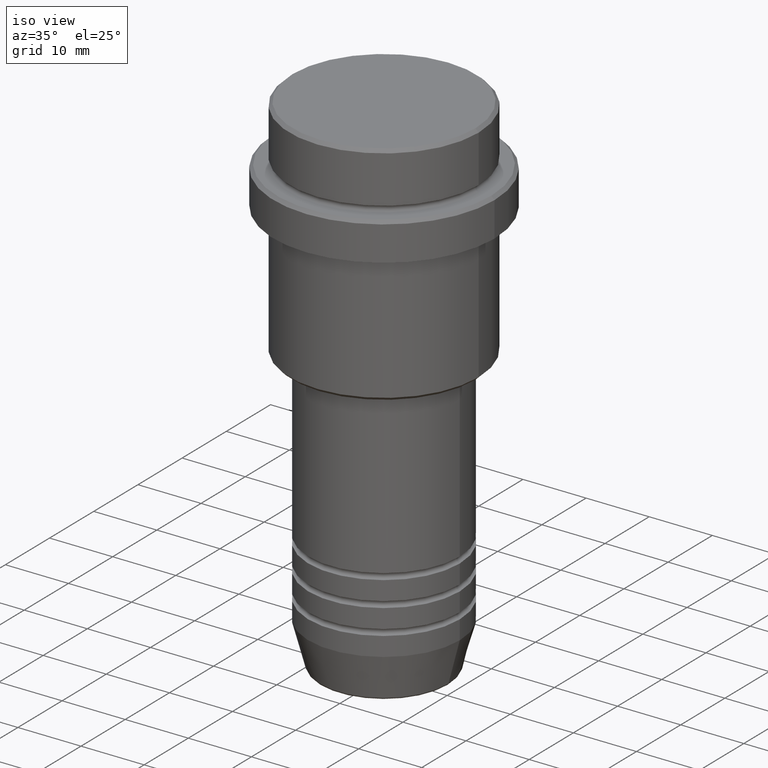
[diagram: clean part render]
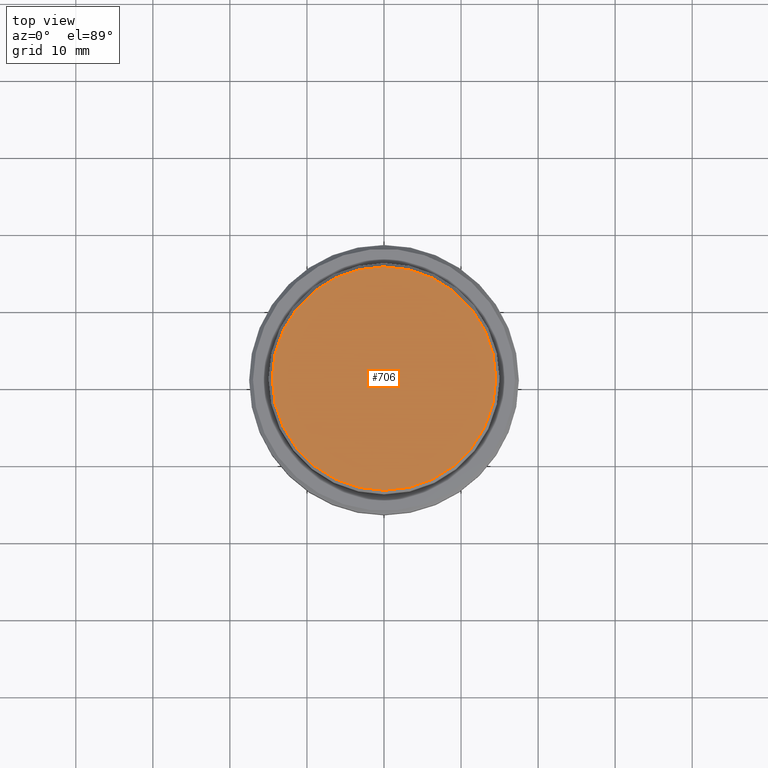
[diagram: tour spotlight — one face highlighted and labeled with its STEP entity id]
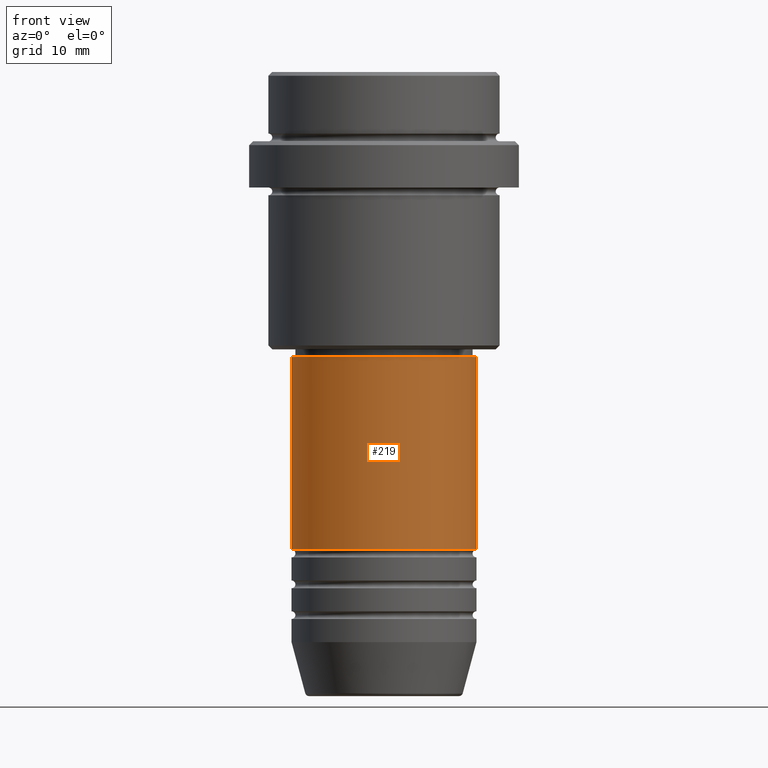
[diagram: tour spotlight — one face highlighted and labeled with its STEP entity id]
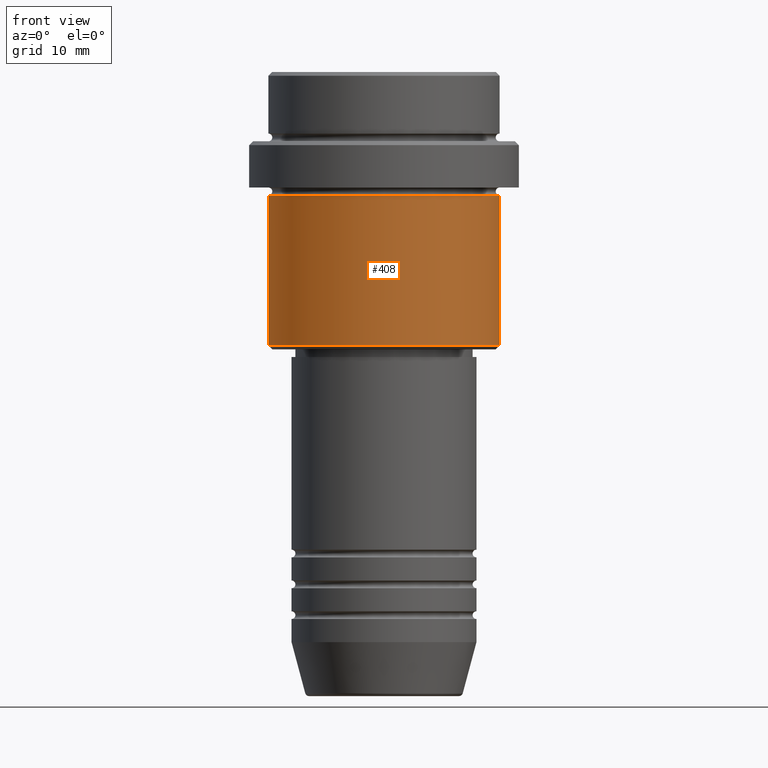
[diagram: tour spotlight — one face highlighted and labeled with its STEP entity id]
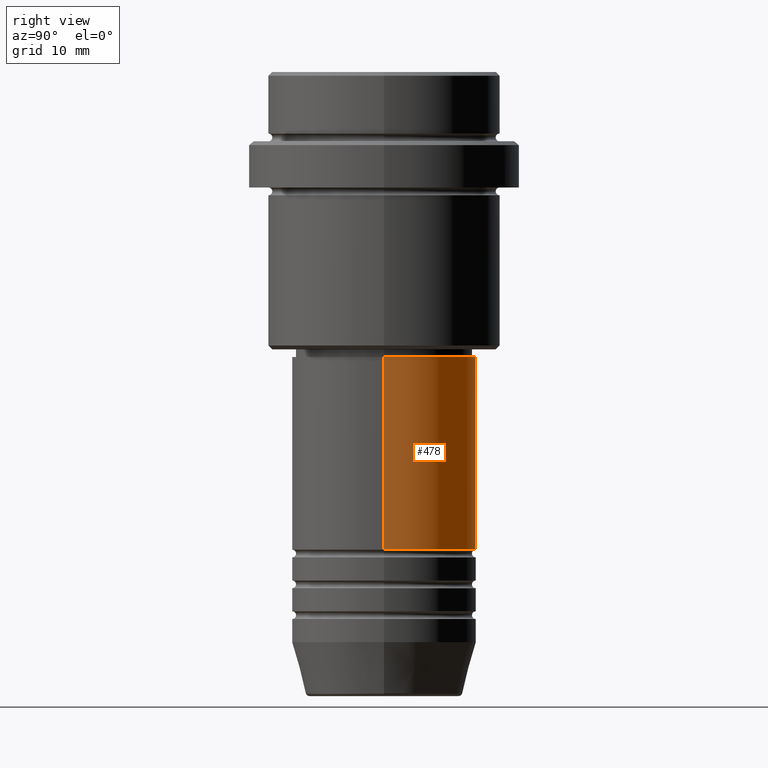
[diagram: tour spotlight — one face highlighted and labeled with its STEP entity id]
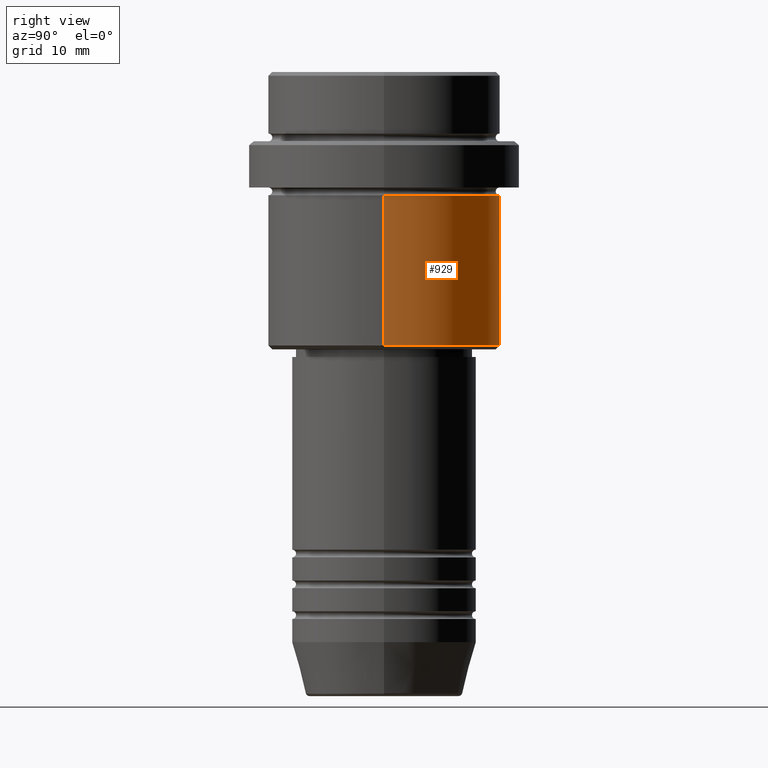
[diagram: tour spotlight — one face highlighted and labeled with its STEP entity id]
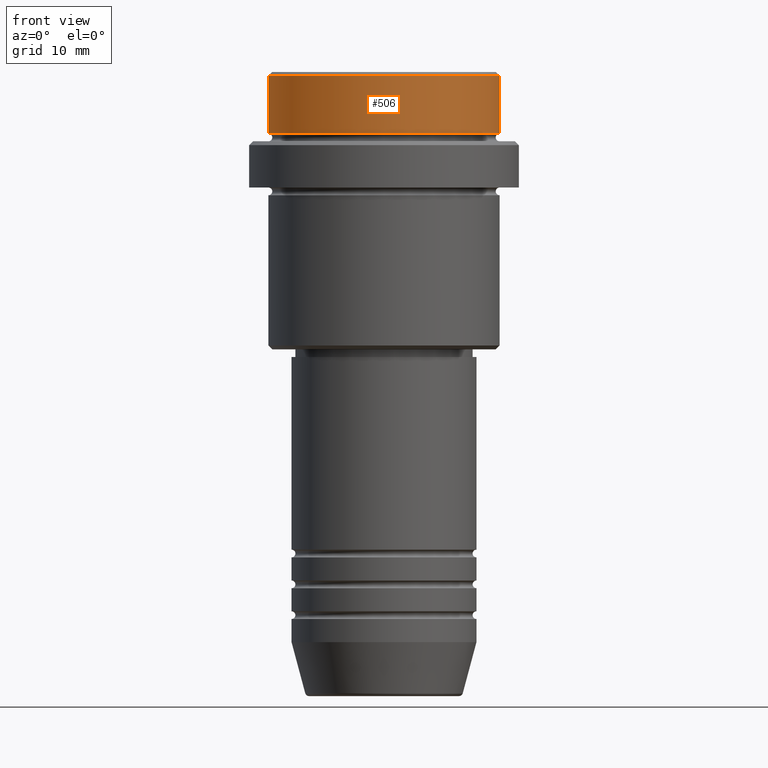
[diagram: tour spotlight — one face highlighted and labeled with its STEP entity id]
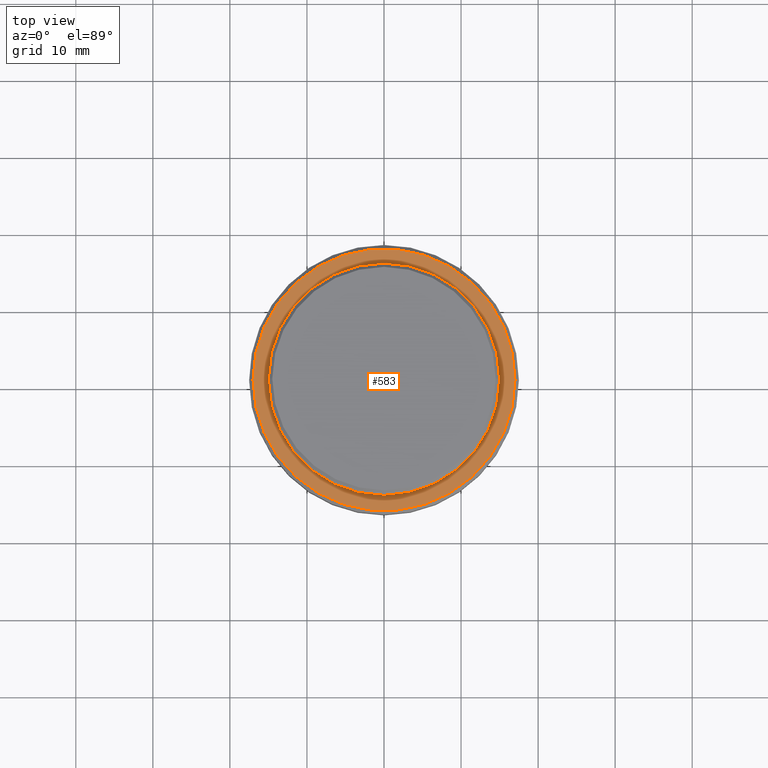
[diagram: tour spotlight — one face highlighted and labeled with its STEP entity id]
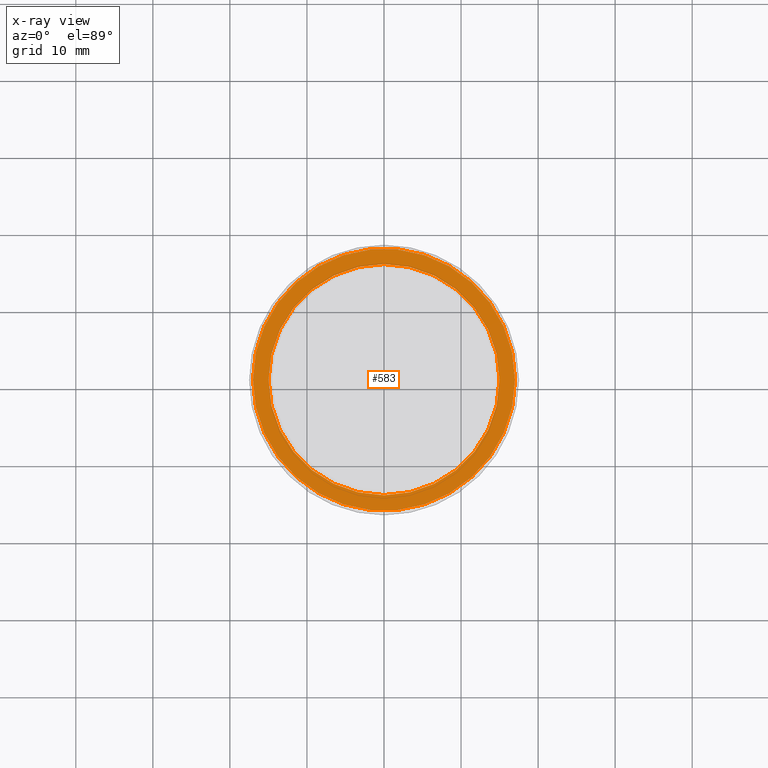
[diagram: x-ray of the same camera — body ghosted, this tour face saturated]
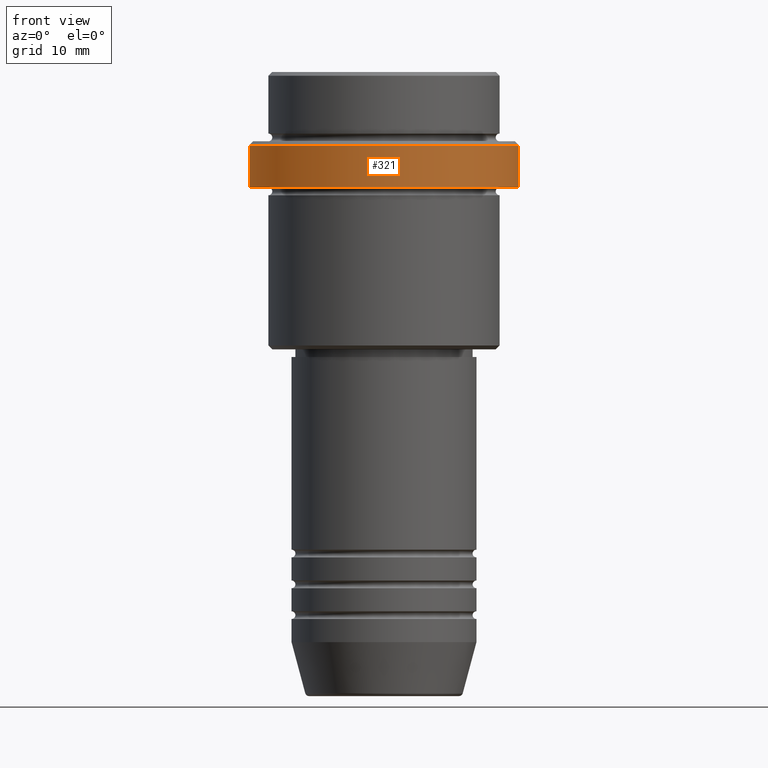
[diagram: tour spotlight — one face highlighted and labeled with its STEP entity id]
A machine part: a face-by-face anatomy tour. The part has 52 B-rep faces; the first image is the clean iso view, then the 8 largest visible faces are spotlighted one at a time (largest first), each with its STEP entity span.

Face 1 — top view, entity #706. In plain terms, the highlighted planar face has unit normal (0, -0, 1).
Definition (entity closure, byte-faithful):
#66 = CIRCLE ( 'NONE', #530, 14.50000000000001066 ) ;
#134 = DIRECTION ( 'NONE',  ( 1.000000000000000000, 0.000000000000000000, 0.000000000000000000 ) ) ;
#150 = ORIENTED_EDGE ( 'NONE', *, *, #499, .T. ) ;
#260 = DIRECTION ( 'NONE',  ( -0.000000000000000000, -0.000000000000000000, 1.000000000000000000 ) ) ;
#276 = AXIS2_PLACEMENT_3D ( 'NONE', #1019, #260, #134 ) ;
#480 = AXIS2_PLACEMENT_3D ( 'NONE', #1366, #708, #1221 ) ;
#487 = ORIENTED_EDGE ( 'NONE', *, *, #755, .T. ) ;
#499 = EDGE_CURVE ( 'NONE', #1029, #527, #66, .T. ) ;
#507 = CIRCLE ( 'NONE', #276, 14.50000000000001066 ) ;
#527 = VERTEX_POINT ( 'NONE', #956 ) ;
#530 = AXIS2_PLACEMENT_3D ( 'NONE', #1113, #710, #947 ) ;
#612 = CARTESIAN_POINT ( 'NONE',  ( -14.50000000000001066, 0.000000000000000000, 0.000000000000000000 ) ) ;
#706 = ADVANCED_FACE ( 'NONE', ( #726 ), #1371, .T. ) ;
#708 = DIRECTION ( 'NONE',  ( 0.000000000000000000, -0.000000000000000000, 1.000000000000000000 ) ) ;
#710 = DIRECTION ( 'NONE',  ( -0.000000000000000000, -0.000000000000000000, 1.000000000000000000 ) ) ;
#726 = FACE_OUTER_BOUND ( 'NONE', #1025, .T. ) ;
#755 = EDGE_CURVE ( 'NONE', #527, #1029, #507, .T. ) ;
#947 = DIRECTION ( 'NONE',  ( 1.000000000000000000, 0.000000000000000000, 0.000000000000000000 ) ) ;
#956 = CARTESIAN_POINT ( 'NONE',  ( 14.50000000000001066, 1.806354028742346591E-15, 0.000000000000000000 ) ) ;
#1019 = CARTESIAN_POINT ( 'NONE',  ( 0.000000000000000000, 0.000000000000000000, 0.000000000000000000 ) ) ;
#1025 = EDGE_LOOP ( 'NONE', ( #150, #487 ) ) ;
#1029 = VERTEX_POINT ( 'NONE', #612 ) ;
#1113 = CARTESIAN_POINT ( 'NONE',  ( 0.000000000000000000, 0.000000000000000000, 0.000000000000000000 ) ) ;
#1221 = DIRECTION ( 'NONE',  ( 1.000000000000000000, 0.000000000000000000, 0.000000000000000000 ) ) ;
#1366 = CARTESIAN_POINT ( 'NONE',  ( 0.000000000000000000, 0.000000000000000000, 0.000000000000000000 ) ) ;
#1371 = PLANE ( 'NONE',  #480 ) ;

Face 2 — front view, entity #219. In plain terms, the highlighted cylindrical surface (partial cylindrical patch) has radius 12 mm, axis along (-0, -0, 1).
Definition (entity closure, byte-faithful):
#17 = CARTESIAN_POINT ( 'NONE',  ( 11.99999999999999822, 0.000000000000000000, -37.00000000000000000 ) ) ;
#35 = EDGE_CURVE ( 'NONE', #791, #795, #1202, .T. ) ;
#46 = CARTESIAN_POINT ( 'NONE',  ( 0.000000000000000000, 0.000000000000000000, -61.99999999999987921 ) ) ;
#95 = EDGE_CURVE ( 'NONE', #1087, #97, #296, .T. ) ;
#97 = VERTEX_POINT ( 'NONE', #17 ) ;
#105 = AXIS2_PLACEMENT_3D ( 'NONE', #168, #751, #192 ) ;
#114 = LINE ( 'NONE', #1104, #179 ) ;
#168 = CARTESIAN_POINT ( 'NONE',  ( 0.000000000000000000, 0.000000000000000000, 0.000000000000000000 ) ) ;
#179 = VECTOR ( 'NONE', #683, 1000.000000000000000 ) ;
#192 = DIRECTION ( 'NONE',  ( 1.000000000000000000, 0.000000000000000000, 0.000000000000000000 ) ) ;
#197 = ORIENTED_EDGE ( 'NONE', *, *, #95, .F. ) ;
#211 = CARTESIAN_POINT ( 'NONE',  ( -11.99999999999999822, 1.469576158976823750E-15, -37.00000000000000000 ) ) ;
#213 = EDGE_LOOP ( 'NONE', ( #1311, #468, #327, #197 ) ) ;
#219 = ADVANCED_FACE ( 'NONE', ( #376 ), #495, .T. ) ;
#224 = CARTESIAN_POINT ( 'NONE',  ( 0.000000000000000000, 0.000000000000000000, -37.00000000000000000 ) ) ;
#237 = LINE ( 'NONE', #481, #651 ) ;
#296 = CIRCLE ( 'NONE', #692, 11.99999999999999822 ) ;
#308 = EDGE_CURVE ( 'NONE', #791, #1087, #114, .T. ) ;
#327 = ORIENTED_EDGE ( 'NONE', *, *, #1257, .T. ) ;
#376 = FACE_OUTER_BOUND ( 'NONE', #213, .T. ) ;
#380 = CARTESIAN_POINT ( 'NONE',  ( -12.00000000000000000, 1.469576158976823947E-15, -61.99999999999987921 ) ) ;
#468 = ORIENTED_EDGE ( 'NONE', *, *, #35, .T. ) ;
#481 = CARTESIAN_POINT ( 'NONE',  ( 12.00000000000000000, 0.000000000000000000, 0.000000000000000000 ) ) ;
#482 = DIRECTION ( 'NONE',  ( -0.000000000000000000, -0.000000000000000000, 1.000000000000000000 ) ) ;
#495 = CYLINDRICAL_SURFACE ( 'NONE', #105, 12.00000000000000000 ) ;
#542 = CARTESIAN_POINT ( 'NONE',  ( 12.00000000000000000, 0.000000000000000000, -61.99999999999987921 ) ) ;
#651 = VECTOR ( 'NONE', #679, 1000.000000000000000 ) ;
#679 = DIRECTION ( 'NONE',  ( -0.000000000000000000, -0.000000000000000000, 1.000000000000000000 ) ) ;
#683 = DIRECTION ( 'NONE',  ( -0.000000000000000000, -0.000000000000000000, 1.000000000000000000 ) ) ;
#692 = AXIS2_PLACEMENT_3D ( 'NONE', #224, #1112, #1234 ) ;
#715 = AXIS2_PLACEMENT_3D ( 'NONE', #46, #482, #754 ) ;
#751 = DIRECTION ( 'NONE',  ( -0.000000000000000000, -0.000000000000000000, 1.000000000000000000 ) ) ;
#754 = DIRECTION ( 'NONE',  ( 1.000000000000000000, 0.000000000000000000, 0.000000000000000000 ) ) ;
#791 = VERTEX_POINT ( 'NONE', #380 ) ;
#795 = VERTEX_POINT ( 'NONE', #542 ) ;
#1087 = VERTEX_POINT ( 'NONE', #211 ) ;
#1104 = CARTESIAN_POINT ( 'NONE',  ( -12.00000000000000000, 1.469576158976823947E-15, 0.000000000000000000 ) ) ;
#1112 = DIRECTION ( 'NONE',  ( -0.000000000000000000, -0.000000000000000000, 1.000000000000000000 ) ) ;
#1202 = CIRCLE ( 'NONE', #715, 12.00000000000000000 ) ;
#1234 = DIRECTION ( 'NONE',  ( 1.000000000000000000, 0.000000000000000000, 0.000000000000000000 ) ) ;
#1257 = EDGE_CURVE ( 'NONE', #795, #97, #237, .T. ) ;
#1311 = ORIENTED_EDGE ( 'NONE', *, *, #308, .F. ) ;

Face 3 — front view, entity #408. In plain terms, the highlighted cylindrical surface (partial cylindrical patch) has radius 15 mm, axis along (-0, -0, 1).
Definition (entity closure, byte-faithful):
#31 = CARTESIAN_POINT ( 'NONE',  ( 15.00000000000000178, 0.000000000000000000, -16.00000000000000000 ) ) ;
#43 = ORIENTED_EDGE ( 'NONE', *, *, #774, .F. ) ;
#56 = CARTESIAN_POINT ( 'NONE',  ( 0.000000000000000000, 0.000000000000000000, -16.00000000000000000 ) ) ;
#57 = DIRECTION ( 'NONE',  ( -0.000000000000000000, -0.000000000000000000, 1.000000000000000000 ) ) ;
#157 = CARTESIAN_POINT ( 'NONE',  ( -15.00000000000000000, 1.836970198721029589E-15, 0.000000000000000000 ) ) ;
#203 = VECTOR ( 'NONE', #636, 1000.000000000000000 ) ;
#217 = LINE ( 'NONE', #157, #203 ) ;
#289 = ORIENTED_EDGE ( 'NONE', *, *, #878, .T. ) ;
#291 = CARTESIAN_POINT ( 'NONE',  ( 15.00000000000000000, 0.000000000000000000, -35.49999999999998579 ) ) ;
#300 = CARTESIAN_POINT ( 'NONE',  ( 15.00000000000000000, 0.000000000000000000, 0.000000000000000000 ) ) ;
#363 = VECTOR ( 'NONE', #526, 1000.000000000000000 ) ;
#408 = ADVANCED_FACE ( 'NONE', ( #607 ), #596, .T. ) ;
#414 = EDGE_LOOP ( 'NONE', ( #43, #289, #925, #1248 ) ) ;
#464 = DIRECTION ( 'NONE',  ( -0.000000000000000000, -0.000000000000000000, 1.000000000000000000 ) ) ;
#467 = CARTESIAN_POINT ( 'NONE',  ( -15.00000000000000355, 1.836970198721029983E-15, -16.00000000000000000 ) ) ;
#491 = DIRECTION ( 'NONE',  ( -0.000000000000000000, -0.000000000000000000, 1.000000000000000000 ) ) ;
#526 = DIRECTION ( 'NONE',  ( -0.000000000000000000, -0.000000000000000000, 1.000000000000000000 ) ) ;
#548 = LINE ( 'NONE', #300, #363 ) ;
#565 = EDGE_CURVE ( 'NONE', #986, #913, #548, .T. ) ;
#596 = CYLINDRICAL_SURFACE ( 'NONE', #1090, 15.00000000000000000 ) ;
#607 = FACE_OUTER_BOUND ( 'NONE', #414, .T. ) ;
#629 = AXIS2_PLACEMENT_3D ( 'NONE', #56, #491, #923 ) ;
#636 = DIRECTION ( 'NONE',  ( -0.000000000000000000, -0.000000000000000000, 1.000000000000000000 ) ) ;
#649 = CIRCLE ( 'NONE', #629, 15.00000000000000178 ) ;
#691 = DIRECTION ( 'NONE',  ( -1.000000000000000000, 0.000000000000000000, 0.000000000000000000 ) ) ;
#714 = DIRECTION ( 'NONE',  ( 1.000000000000000000, 0.000000000000000000, 0.000000000000000000 ) ) ;
#768 = VERTEX_POINT ( 'NONE', #467 ) ;
#774 = EDGE_CURVE ( 'NONE', #1292, #768, #217, .T. ) ;
#821 = CARTESIAN_POINT ( 'NONE',  ( 0.000000000000000000, 0.000000000000000000, -35.49999999999998579 ) ) ;
#822 = CARTESIAN_POINT ( 'NONE',  ( 0.000000000000000000, 0.000000000000000000, 0.000000000000000000 ) ) ;
#878 = EDGE_CURVE ( 'NONE', #1292, #986, #1207, .T. ) ;
#913 = VERTEX_POINT ( 'NONE', #31 ) ;
#916 = CARTESIAN_POINT ( 'NONE',  ( -15.00000000000000000, 1.836970198721029589E-15, -35.49999999999998579 ) ) ;
#923 = DIRECTION ( 'NONE',  ( 1.000000000000000000, 0.000000000000000000, 0.000000000000000000 ) ) ;
#925 = ORIENTED_EDGE ( 'NONE', *, *, #565, .T. ) ;
#936 = EDGE_CURVE ( 'NONE', #768, #913, #649, .T. ) ;
#982 = AXIS2_PLACEMENT_3D ( 'NONE', #821, #464, #691 ) ;
#986 = VERTEX_POINT ( 'NONE', #291 ) ;
#1090 = AXIS2_PLACEMENT_3D ( 'NONE', #822, #57, #714 ) ;
#1207 = CIRCLE ( 'NONE', #982, 15.00000000000000000 ) ;
#1248 = ORIENTED_EDGE ( 'NONE', *, *, #936, .F. ) ;
#1292 = VERTEX_POINT ( 'NONE', #916 ) ;

Face 4 — right view, entity #478. In plain terms, the highlighted cylindrical surface (partial cylindrical patch) has radius 12 mm, axis along (-0, -0, 1).
Definition (entity closure, byte-faithful):
#17 = CARTESIAN_POINT ( 'NONE',  ( 11.99999999999999822, 0.000000000000000000, -37.00000000000000000 ) ) ;
#47 = DIRECTION ( 'NONE',  ( 1.000000000000000000, 0.000000000000000000, 0.000000000000000000 ) ) ;
#97 = VERTEX_POINT ( 'NONE', #17 ) ;
#98 = CARTESIAN_POINT ( 'NONE',  ( 0.000000000000000000, 0.000000000000000000, -61.99999999999987921 ) ) ;
#114 = LINE ( 'NONE', #1104, #179 ) ;
#179 = VECTOR ( 'NONE', #683, 1000.000000000000000 ) ;
#204 = CIRCLE ( 'NONE', #1142, 11.99999999999999822 ) ;
#211 = CARTESIAN_POINT ( 'NONE',  ( -11.99999999999999822, 1.469576158976823750E-15, -37.00000000000000000 ) ) ;
#237 = LINE ( 'NONE', #481, #651 ) ;
#244 = ORIENTED_EDGE ( 'NONE', *, *, #794, .T. ) ;
#308 = EDGE_CURVE ( 'NONE', #791, #1087, #114, .T. ) ;
#326 = DIRECTION ( 'NONE',  ( -0.000000000000000000, -0.000000000000000000, 1.000000000000000000 ) ) ;
#350 = DIRECTION ( 'NONE',  ( 1.000000000000000000, 0.000000000000000000, 0.000000000000000000 ) ) ;
#380 = CARTESIAN_POINT ( 'NONE',  ( -12.00000000000000000, 1.469576158976823947E-15, -61.99999999999987921 ) ) ;
#459 = FACE_OUTER_BOUND ( 'NONE', #557, .T. ) ;
#478 = ADVANCED_FACE ( 'NONE', ( #459 ), #1344, .T. ) ;
#481 = CARTESIAN_POINT ( 'NONE',  ( 12.00000000000000000, 0.000000000000000000, 0.000000000000000000 ) ) ;
#542 = CARTESIAN_POINT ( 'NONE',  ( 12.00000000000000000, 0.000000000000000000, -61.99999999999987921 ) ) ;
#557 = EDGE_LOOP ( 'NONE', ( #244, #1056, #830, #868 ) ) ;
#651 = VECTOR ( 'NONE', #679, 1000.000000000000000 ) ;
#679 = DIRECTION ( 'NONE',  ( -0.000000000000000000, -0.000000000000000000, 1.000000000000000000 ) ) ;
#683 = DIRECTION ( 'NONE',  ( -0.000000000000000000, -0.000000000000000000, 1.000000000000000000 ) ) ;
#702 = CARTESIAN_POINT ( 'NONE',  ( 0.000000000000000000, 0.000000000000000000, 0.000000000000000000 ) ) ;
#791 = VERTEX_POINT ( 'NONE', #380 ) ;
#794 = EDGE_CURVE ( 'NONE', #795, #791, #807, .T. ) ;
#795 = VERTEX_POINT ( 'NONE', #542 ) ;
#807 = CIRCLE ( 'NONE', #1187, 12.00000000000000000 ) ;
#830 = ORIENTED_EDGE ( 'NONE', *, *, #899, .F. ) ;
#868 = ORIENTED_EDGE ( 'NONE', *, *, #1257, .F. ) ;
#899 = EDGE_CURVE ( 'NONE', #97, #1087, #204, .T. ) ;
#1013 = DIRECTION ( 'NONE',  ( -0.000000000000000000, -0.000000000000000000, 1.000000000000000000 ) ) ;
#1032 = DIRECTION ( 'NONE',  ( -0.000000000000000000, -0.000000000000000000, 1.000000000000000000 ) ) ;
#1056 = ORIENTED_EDGE ( 'NONE', *, *, #308, .T. ) ;
#1087 = VERTEX_POINT ( 'NONE', #211 ) ;
#1104 = CARTESIAN_POINT ( 'NONE',  ( -12.00000000000000000, 1.469576158976823947E-15, 0.000000000000000000 ) ) ;
#1120 = AXIS2_PLACEMENT_3D ( 'NONE', #702, #1013, #1130 ) ;
#1130 = DIRECTION ( 'NONE',  ( 1.000000000000000000, 0.000000000000000000, 0.000000000000000000 ) ) ;
#1142 = AXIS2_PLACEMENT_3D ( 'NONE', #1230, #1032, #47 ) ;
#1187 = AXIS2_PLACEMENT_3D ( 'NONE', #98, #326, #350 ) ;
#1230 = CARTESIAN_POINT ( 'NONE',  ( 0.000000000000000000, 0.000000000000000000, -37.00000000000000000 ) ) ;
#1257 = EDGE_CURVE ( 'NONE', #795, #97, #237, .T. ) ;
#1344 = CYLINDRICAL_SURFACE ( 'NONE', #1120, 12.00000000000000000 ) ;

Face 5 — right view, entity #929. In plain terms, the highlighted cylindrical surface (partial cylindrical patch) has radius 15 mm, axis along (-0, -0, 1).
Definition (entity closure, byte-faithful):
#24 = EDGE_CURVE ( 'NONE', #913, #768, #1369, .T. ) ;
#31 = CARTESIAN_POINT ( 'NONE',  ( 15.00000000000000178, 0.000000000000000000, -16.00000000000000000 ) ) ;
#102 = DIRECTION ( 'NONE',  ( -0.000000000000000000, -0.000000000000000000, 1.000000000000000000 ) ) ;
#157 = CARTESIAN_POINT ( 'NONE',  ( -15.00000000000000000, 1.836970198721029589E-15, 0.000000000000000000 ) ) ;
#203 = VECTOR ( 'NONE', #636, 1000.000000000000000 ) ;
#217 = LINE ( 'NONE', #157, #203 ) ;
#272 = ORIENTED_EDGE ( 'NONE', *, *, #774, .T. ) ;
#291 = CARTESIAN_POINT ( 'NONE',  ( 15.00000000000000000, 0.000000000000000000, -35.49999999999998579 ) ) ;
#300 = CARTESIAN_POINT ( 'NONE',  ( 15.00000000000000000, 0.000000000000000000, 0.000000000000000000 ) ) ;
#342 = AXIS2_PLACEMENT_3D ( 'NONE', #359, #803, #1246 ) ;
#359 = CARTESIAN_POINT ( 'NONE',  ( 0.000000000000000000, 0.000000000000000000, 0.000000000000000000 ) ) ;
#363 = VECTOR ( 'NONE', #526, 1000.000000000000000 ) ;
#368 = FACE_OUTER_BOUND ( 'NONE', #951, .T. ) ;
#400 = ORIENTED_EDGE ( 'NONE', *, *, #24, .F. ) ;
#418 = EDGE_CURVE ( 'NONE', #986, #1292, #931, .T. ) ;
#467 = CARTESIAN_POINT ( 'NONE',  ( -15.00000000000000355, 1.836970198721029983E-15, -16.00000000000000000 ) ) ;
#493 = DIRECTION ( 'NONE',  ( -1.000000000000000000, 0.000000000000000000, 0.000000000000000000 ) ) ;
#526 = DIRECTION ( 'NONE',  ( -0.000000000000000000, -0.000000000000000000, 1.000000000000000000 ) ) ;
#548 = LINE ( 'NONE', #300, #363 ) ;
#561 = ORIENTED_EDGE ( 'NONE', *, *, #565, .F. ) ;
#565 = EDGE_CURVE ( 'NONE', #986, #913, #548, .T. ) ;
#597 = AXIS2_PLACEMENT_3D ( 'NONE', #1018, #102, #1227 ) ;
#636 = DIRECTION ( 'NONE',  ( -0.000000000000000000, -0.000000000000000000, 1.000000000000000000 ) ) ;
#768 = VERTEX_POINT ( 'NONE', #467 ) ;
#774 = EDGE_CURVE ( 'NONE', #1292, #768, #217, .T. ) ;
#803 = DIRECTION ( 'NONE',  ( -0.000000000000000000, -0.000000000000000000, 1.000000000000000000 ) ) ;
#913 = VERTEX_POINT ( 'NONE', #31 ) ;
#916 = CARTESIAN_POINT ( 'NONE',  ( -15.00000000000000000, 1.836970198721029589E-15, -35.49999999999998579 ) ) ;
#929 = ADVANCED_FACE ( 'NONE', ( #368 ), #1359, .T. ) ;
#931 = CIRCLE ( 'NONE', #1395, 15.00000000000000000 ) ;
#951 = EDGE_LOOP ( 'NONE', ( #1244, #272, #400, #561 ) ) ;
#986 = VERTEX_POINT ( 'NONE', #291 ) ;
#1018 = CARTESIAN_POINT ( 'NONE',  ( 0.000000000000000000, 0.000000000000000000, -16.00000000000000000 ) ) ;
#1033 = DIRECTION ( 'NONE',  ( -0.000000000000000000, -0.000000000000000000, 1.000000000000000000 ) ) ;
#1227 = DIRECTION ( 'NONE',  ( 1.000000000000000000, 0.000000000000000000, 0.000000000000000000 ) ) ;
#1244 = ORIENTED_EDGE ( 'NONE', *, *, #418, .T. ) ;
#1246 = DIRECTION ( 'NONE',  ( 1.000000000000000000, 0.000000000000000000, 0.000000000000000000 ) ) ;
#1272 = CARTESIAN_POINT ( 'NONE',  ( 0.000000000000000000, 0.000000000000000000, -35.49999999999998579 ) ) ;
#1292 = VERTEX_POINT ( 'NONE', #916 ) ;
#1359 = CYLINDRICAL_SURFACE ( 'NONE', #342, 15.00000000000000000 ) ;
#1369 = CIRCLE ( 'NONE', #597, 15.00000000000000178 ) ;
#1395 = AXIS2_PLACEMENT_3D ( 'NONE', #1272, #1033, #493 ) ;

Face 6 — front view, entity #506. In plain terms, the highlighted cylindrical surface (partial cylindrical patch) has radius 15 mm, axis along (-0, -0, 1).
Definition (entity closure, byte-faithful):
#62 = ORIENTED_EDGE ( 'NONE', *, *, #1011, .T. ) ;
#101 = CARTESIAN_POINT ( 'NONE',  ( 15.00000000000000000, 0.000000000000000000, -7.999999999999998224 ) ) ;
#147 = DIRECTION ( 'NONE',  ( -0.000000000000000000, -0.000000000000000000, 1.000000000000000000 ) ) ;
#149 = EDGE_CURVE ( 'NONE', #1401, #650, #454, .T. ) ;
#159 = DIRECTION ( 'NONE',  ( 1.000000000000000000, 0.000000000000000000, 0.000000000000000000 ) ) ;
#171 = CARTESIAN_POINT ( 'NONE',  ( 0.000000000000000000, 0.000000000000000000, -0.4999999999999970024 ) ) ;
#273 = AXIS2_PLACEMENT_3D ( 'NONE', #288, #147, #159 ) ;
#281 = FACE_OUTER_BOUND ( 'NONE', #1392, .T. ) ;
#288 = CARTESIAN_POINT ( 'NONE',  ( 0.000000000000000000, 0.000000000000000000, -7.999999999999998224 ) ) ;
#298 = AXIS2_PLACEMENT_3D ( 'NONE', #374, #403, #849 ) ;
#320 = CIRCLE ( 'NONE', #857, 15.00000000000000000 ) ;
#360 = DIRECTION ( 'NONE',  ( -0.000000000000000000, -0.000000000000000000, 1.000000000000000000 ) ) ;
#364 = EDGE_CURVE ( 'NONE', #1401, #1173, #742, .T. ) ;
#374 = CARTESIAN_POINT ( 'NONE',  ( 0.000000000000000000, 0.000000000000000000, 0.000000000000000000 ) ) ;
#403 = DIRECTION ( 'NONE',  ( -0.000000000000000000, -0.000000000000000000, 1.000000000000000000 ) ) ;
#454 = LINE ( 'NONE', #796, #1279 ) ;
#479 = VECTOR ( 'NONE', #360, 1000.000000000000000 ) ;
#506 = ADVANCED_FACE ( 'NONE', ( #281 ), #1388, .T. ) ;
#559 = CARTESIAN_POINT ( 'NONE',  ( -15.00000000000000000, 1.836970198721029589E-15, -0.4999999999999970024 ) ) ;
#568 = DIRECTION ( 'NONE',  ( -0.000000000000000000, -0.000000000000000000, 1.000000000000000000 ) ) ;
#589 = EDGE_CURVE ( 'NONE', #1173, #844, #1322, .T. ) ;
#627 = DIRECTION ( 'NONE',  ( 1.000000000000000000, 0.000000000000000000, 0.000000000000000000 ) ) ;
#650 = VERTEX_POINT ( 'NONE', #559 ) ;
#681 = CARTESIAN_POINT ( 'NONE',  ( 15.00000000000000000, 0.000000000000000000, 0.000000000000000000 ) ) ;
#742 = CIRCLE ( 'NONE', #273, 15.00000000000000000 ) ;
#796 = CARTESIAN_POINT ( 'NONE',  ( -15.00000000000000000, 1.836970198721029589E-15, 0.000000000000000000 ) ) ;
#844 = VERTEX_POINT ( 'NONE', #1000 ) ;
#849 = DIRECTION ( 'NONE',  ( 1.000000000000000000, 0.000000000000000000, 0.000000000000000000 ) ) ;
#857 = AXIS2_PLACEMENT_3D ( 'NONE', #171, #1378, #627 ) ;
#937 = CARTESIAN_POINT ( 'NONE',  ( -15.00000000000000000, 1.836970198721029589E-15, -7.999999999999998224 ) ) ;
#970 = ORIENTED_EDGE ( 'NONE', *, *, #149, .F. ) ;
#1000 = CARTESIAN_POINT ( 'NONE',  ( 15.00000000000000000, 0.000000000000000000, -0.4999999999999970024 ) ) ;
#1011 = EDGE_CURVE ( 'NONE', #844, #650, #320, .T. ) ;
#1131 = ORIENTED_EDGE ( 'NONE', *, *, #589, .T. ) ;
#1173 = VERTEX_POINT ( 'NONE', #101 ) ;
#1279 = VECTOR ( 'NONE', #568, 1000.000000000000000 ) ;
#1322 = LINE ( 'NONE', #681, #479 ) ;
#1325 = ORIENTED_EDGE ( 'NONE', *, *, #364, .T. ) ;
#1378 = DIRECTION ( 'NONE',  ( 0.000000000000000000, 0.000000000000000000, -1.000000000000000000 ) ) ;
#1388 = CYLINDRICAL_SURFACE ( 'NONE', #298, 15.00000000000000000 ) ;
#1392 = EDGE_LOOP ( 'NONE', ( #970, #1325, #1131, #62 ) ) ;
#1401 = VERTEX_POINT ( 'NONE', #937 ) ;

Face 7 — top view, entity #583. An x-ray twin of the same camera follows (body ghosted, this face saturated) — the face is partly hidden behind the body. In plain terms, the highlighted planar face has unit normal (0, -0, 1).
Definition (entity closure, byte-faithful):
#49 = AXIS2_PLACEMENT_3D ( 'NONE', #879, #218, #860 ) ;
#67 = EDGE_CURVE ( 'NONE', #370, #547, #83, .T. ) ;
#83 = CIRCLE ( 'NONE', #201, 17.00000000000001421 ) ;
#92 = ORIENTED_EDGE ( 'NONE', *, *, #1151, .T. ) ;
#107 = AXIS2_PLACEMENT_3D ( 'NONE', #239, #904, #1343 ) ;
#162 = EDGE_CURVE ( 'NONE', #547, #370, #1347, .T. ) ;
#181 = VERTEX_POINT ( 'NONE', #571 ) ;
#201 = AXIS2_PLACEMENT_3D ( 'NONE', #1268, #524, #833 ) ;
#218 = DIRECTION ( 'NONE',  ( 0.000000000000000000, 0.000000000000000000, -1.000000000000000000 ) ) ;
#236 = DIRECTION ( 'NONE',  ( 1.000000000000000000, 0.000000000000000000, 0.000000000000000000 ) ) ;
#239 = CARTESIAN_POINT ( 'NONE',  ( 0.000000000000000000, 14.49999999999999467, -9.000000000000000000 ) ) ;
#246 = DIRECTION ( 'NONE',  ( -0.000000000000000000, -0.000000000000000000, 1.000000000000000000 ) ) ;
#331 = FACE_BOUND ( 'NONE', #434, .T. ) ;
#370 = VERTEX_POINT ( 'NONE', #382 ) ;
#382 = CARTESIAN_POINT ( 'NONE',  ( -17.00000000000001421, 0.000000000000000000, -9.000000000000000000 ) ) ;
#422 = DIRECTION ( 'NONE',  ( 0.000000000000000000, 0.000000000000000000, -1.000000000000000000 ) ) ;
#434 = EDGE_LOOP ( 'NONE', ( #92, #968 ) ) ;
#438 = CIRCLE ( 'NONE', #49, 14.99999999999999289 ) ;
#520 = EDGE_CURVE ( 'NONE', #181, #685, #1229, .T. ) ;
#524 = DIRECTION ( 'NONE',  ( -0.000000000000000000, -0.000000000000000000, 1.000000000000000000 ) ) ;
#541 = DIRECTION ( 'NONE',  ( 1.000000000000000000, 0.000000000000000000, 0.000000000000000000 ) ) ;
#547 = VERTEX_POINT ( 'NONE', #867 ) ;
#571 = CARTESIAN_POINT ( 'NONE',  ( -14.99999999999999289, 1.836970198721028800E-15, -9.000000000000000000 ) ) ;
#583 = ADVANCED_FACE ( 'NONE', ( #898, #331 ), #1009, .T. ) ;
#685 = VERTEX_POINT ( 'NONE', #1170 ) ;
#779 = CARTESIAN_POINT ( 'NONE',  ( 0.000000000000000000, 0.000000000000000000, -9.000000000000000000 ) ) ;
#833 = DIRECTION ( 'NONE',  ( 1.000000000000000000, 0.000000000000000000, 0.000000000000000000 ) ) ;
#860 = DIRECTION ( 'NONE',  ( 1.000000000000000000, 0.000000000000000000, 0.000000000000000000 ) ) ;
#867 = CARTESIAN_POINT ( 'NONE',  ( 17.00000000000001421, 2.112515728529185250E-15, -9.000000000000000000 ) ) ;
#879 = CARTESIAN_POINT ( 'NONE',  ( 0.000000000000000000, 0.000000000000000000, -9.000000000000000000 ) ) ;
#898 = FACE_OUTER_BOUND ( 'NONE', #1284, .T. ) ;
#904 = DIRECTION ( 'NONE',  ( 0.000000000000000000, -0.000000000000000000, 1.000000000000000000 ) ) ;
#959 = ORIENTED_EDGE ( 'NONE', *, *, #162, .T. ) ;
#968 = ORIENTED_EDGE ( 'NONE', *, *, #520, .T. ) ;
#999 = AXIS2_PLACEMENT_3D ( 'NONE', #1034, #422, #541 ) ;
#1009 = PLANE ( 'NONE',  #107 ) ;
#1034 = CARTESIAN_POINT ( 'NONE',  ( 0.000000000000000000, 0.000000000000000000, -9.000000000000000000 ) ) ;
#1151 = EDGE_CURVE ( 'NONE', #685, #181, #438, .T. ) ;
#1170 = CARTESIAN_POINT ( 'NONE',  ( 14.99999999999999289, 0.000000000000000000, -9.000000000000000000 ) ) ;
#1182 = AXIS2_PLACEMENT_3D ( 'NONE', #779, #246, #236 ) ;
#1198 = ORIENTED_EDGE ( 'NONE', *, *, #67, .T. ) ;
#1229 = CIRCLE ( 'NONE', #999, 14.99999999999999289 ) ;
#1268 = CARTESIAN_POINT ( 'NONE',  ( 0.000000000000000000, 0.000000000000000000, -9.000000000000000000 ) ) ;
#1284 = EDGE_LOOP ( 'NONE', ( #1198, #959 ) ) ;
#1343 = DIRECTION ( 'NONE',  ( 1.000000000000000000, 0.000000000000000000, 0.000000000000000000 ) ) ;
#1347 = CIRCLE ( 'NONE', #1182, 17.00000000000001421 ) ;

Face 8 — front view, entity #321. In plain terms, the highlighted cylindrical surface (partial cylindrical patch) has radius 17.5 mm, axis along (-0, -0, 1).
Definition (entity closure, byte-faithful):
#20 = CIRCLE ( 'NONE', #44, 17.50000000000000000 ) ;
#30 = DIRECTION ( 'NONE',  ( -0.000000000000000000, -0.000000000000000000, 1.000000000000000000 ) ) ;
#44 = AXIS2_PLACEMENT_3D ( 'NONE', #1354, #709, #355 ) ;
#74 = DIRECTION ( 'NONE',  ( -0.000000000000000000, -0.000000000000000000, 1.000000000000000000 ) ) ;
#82 = CARTESIAN_POINT ( 'NONE',  ( 17.50000000000000000, 0.000000000000000000, 0.000000000000000000 ) ) ;
#172 = CARTESIAN_POINT ( 'NONE',  ( 0.000000000000000000, 0.000000000000000000, 0.000000000000000000 ) ) ;
#199 = ORIENTED_EDGE ( 'NONE', *, *, #667, .F. ) ;
#294 = VERTEX_POINT ( 'NONE', #347 ) ;
#321 = ADVANCED_FACE ( 'NONE', ( #1041 ), #1150, .T. ) ;
#347 = CARTESIAN_POINT ( 'NONE',  ( 17.50000000000000000, 0.000000000000000000, -9.500000000000000000 ) ) ;
#355 = DIRECTION ( 'NONE',  ( 1.000000000000000000, 0.000000000000000000, 0.000000000000000000 ) ) ;
#420 = DIRECTION ( 'NONE',  ( -0.000000000000000000, -0.000000000000000000, 1.000000000000000000 ) ) ;
#429 = EDGE_CURVE ( 'NONE', #294, #1417, #20, .T. ) ;
#458 = CARTESIAN_POINT ( 'NONE',  ( 17.50000000000000000, 0.000000000000000000, -15.00000000000000000 ) ) ;
#508 = LINE ( 'NONE', #82, #746 ) ;
#509 = CARTESIAN_POINT ( 'NONE',  ( -17.50000000000000000, 2.143131898507868248E-15, 0.000000000000000000 ) ) ;
#532 = LINE ( 'NONE', #509, #556 ) ;
#556 = VECTOR ( 'NONE', #420, 1000.000000000000000 ) ;
#667 = EDGE_CURVE ( 'NONE', #670, #1417, #532, .T. ) ;
#670 = VERTEX_POINT ( 'NONE', #841 ) ;
#709 = DIRECTION ( 'NONE',  ( 0.000000000000000000, 0.000000000000000000, -1.000000000000000000 ) ) ;
#717 = EDGE_CURVE ( 'NONE', #670, #900, #960, .T. ) ;
#746 = VECTOR ( 'NONE', #74, 1000.000000000000000 ) ;
#841 = CARTESIAN_POINT ( 'NONE',  ( -17.50000000000000000, 2.143131898507868248E-15, -15.00000000000000000 ) ) ;
#900 = VERTEX_POINT ( 'NONE', #458 ) ;
#910 = DIRECTION ( 'NONE',  ( -0.000000000000000000, -0.000000000000000000, 1.000000000000000000 ) ) ;
#912 = AXIS2_PLACEMENT_3D ( 'NONE', #1251, #30, #1240 ) ;
#926 = CARTESIAN_POINT ( 'NONE',  ( -17.50000000000000000, 2.143131898507868248E-15, -9.500000000000000000 ) ) ;
#960 = CIRCLE ( 'NONE', #912, 17.50000000000000000 ) ;
#1014 = EDGE_CURVE ( 'NONE', #900, #294, #508, .T. ) ;
#1041 = FACE_OUTER_BOUND ( 'NONE', #1114, .T. ) ;
#1079 = ORIENTED_EDGE ( 'NONE', *, *, #1014, .T. ) ;
#1114 = EDGE_LOOP ( 'NONE', ( #199, #1214, #1079, #1282 ) ) ;
#1139 = AXIS2_PLACEMENT_3D ( 'NONE', #172, #910, #1140 ) ;
#1140 = DIRECTION ( 'NONE',  ( 1.000000000000000000, 0.000000000000000000, 0.000000000000000000 ) ) ;
#1150 = CYLINDRICAL_SURFACE ( 'NONE', #1139, 17.50000000000000000 ) ;
#1214 = ORIENTED_EDGE ( 'NONE', *, *, #717, .T. ) ;
#1240 = DIRECTION ( 'NONE',  ( 1.000000000000000000, 0.000000000000000000, 0.000000000000000000 ) ) ;
#1251 = CARTESIAN_POINT ( 'NONE',  ( 0.000000000000000000, 0.000000000000000000, -15.00000000000000000 ) ) ;
#1282 = ORIENTED_EDGE ( 'NONE', *, *, #429, .T. ) ;
#1354 = CARTESIAN_POINT ( 'NONE',  ( 0.000000000000000000, 0.000000000000000000, -9.500000000000000000 ) ) ;
#1417 = VERTEX_POINT ( 'NONE', #926 ) ;